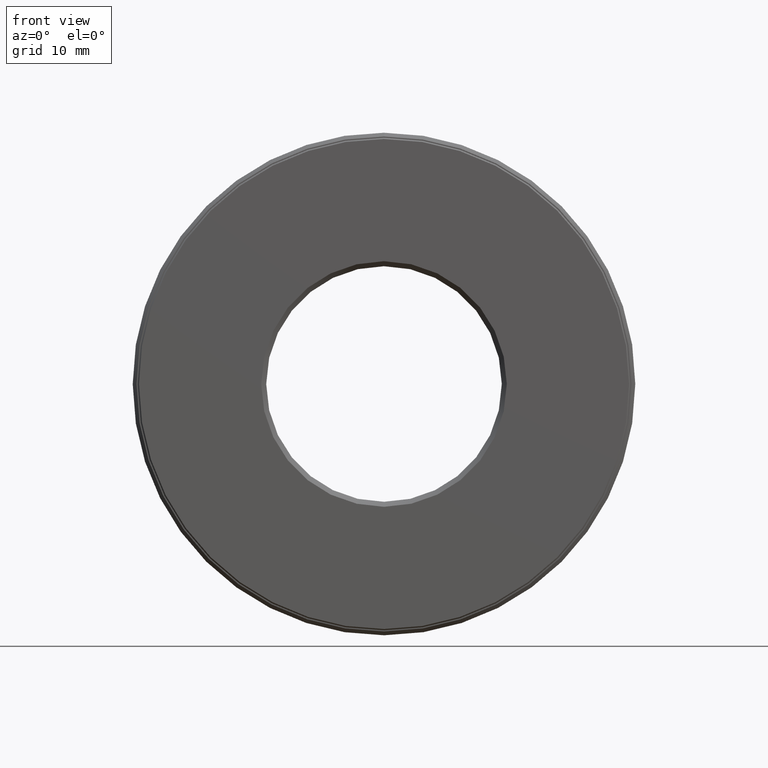
[diagram: clean part render]
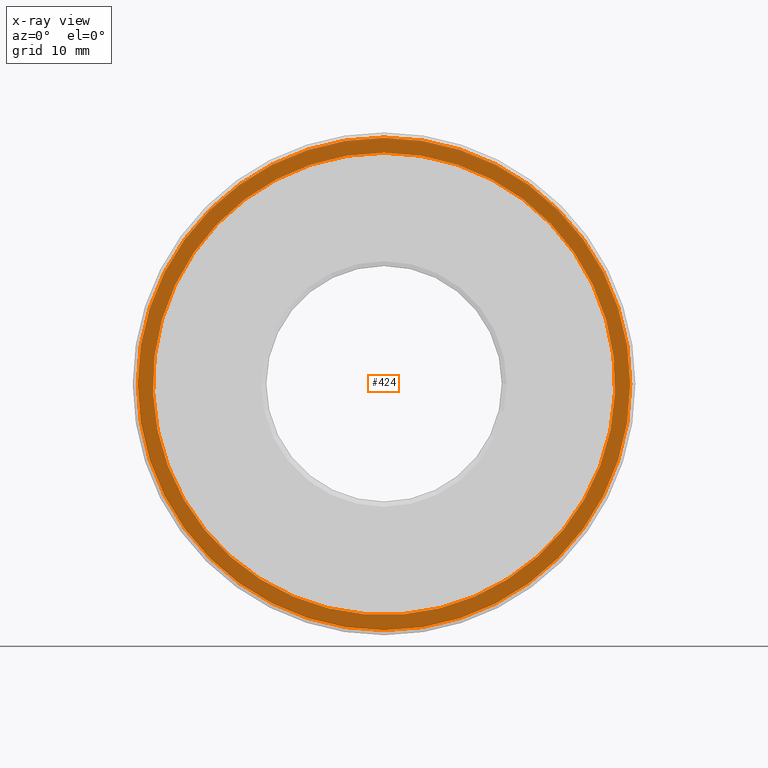
[diagram: x-ray — body ghosted, one internal face saturated and labeled with its STEP entity id]
A machine part, front view, then the same camera in x-ray: the body is ghosted and one INTERNAL B-rep face — a face not visible from any outside direction — is saturated and labeled: STEP entity #424.
In plain terms, the highlighted planar face has unit normal (-0, 1, 0).
Its self-contained STEP definition (entity closure, byte-faithful):
#47 = EDGE_CURVE ( 'NONE', #526, #526, #442, .T. ) ;
#144 = AXIS2_PLACEMENT_3D ( 'NONE', #222, #226, #368 ) ;
#154 = PLANE ( 'NONE',  #235 ) ;
#198 = DIRECTION ( 'NONE',  ( -0.0000000000000000000, 1.000000000000000000, 0.0000000000000000000 ) ) ;
#212 = CIRCLE ( 'NONE', #345, 0.9200000000000000400 ) ;
#222 = CARTESIAN_POINT ( 'NONE',  ( 0.0000000000000000000, 0.6524999999999997500, 0.0000000000000000000 ) ) ;
#226 = DIRECTION ( 'NONE',  ( -0.0000000000000000000, 1.000000000000000000, -0.0000000000000000000 ) ) ;
#235 = AXIS2_PLACEMENT_3D ( 'NONE', #419, #198, #520 ) ;
#249 = CARTESIAN_POINT ( 'NONE',  ( 0.0000000000000000000, 0.6524999999999997500, 0.9799999999999999800 ) ) ;
#288 = DIRECTION ( 'NONE',  ( -0.0000000000000000000, 1.000000000000000000, -0.0000000000000000000 ) ) ;
#293 = CARTESIAN_POINT ( 'NONE',  ( 0.0000000000000000000, 0.6524999999999997500, 0.9200000000000000400 ) ) ;
#295 = EDGE_LOOP ( 'NONE', ( #414 ) ) ;
#296 = FACE_BOUND ( 'NONE', #295, .T. ) ;
#331 = ORIENTED_EDGE ( 'NONE', *, *, #47, .F. ) ;
#345 = AXIS2_PLACEMENT_3D ( 'NONE', #523, #288, #572 ) ;
#368 = DIRECTION ( 'NONE',  ( 0.0000000000000000000, 0.0000000000000000000, 1.000000000000000000 ) ) ;
#414 = ORIENTED_EDGE ( 'NONE', *, *, #486, .T. ) ;
#419 = CARTESIAN_POINT ( 'NONE',  ( 0.0000000000000000000, 0.6524999999999997500, 0.0000000000000000000 ) ) ;
#424 = ADVANCED_FACE ( 'NONE', ( #532, #296 ), #154, .F. ) ;
#442 = CIRCLE ( 'NONE', #144, 0.9799999999999999800 ) ;
#475 = EDGE_LOOP ( 'NONE', ( #331 ) ) ;
#486 = EDGE_CURVE ( 'NONE', #519, #519, #212, .T. ) ;
#519 = VERTEX_POINT ( 'NONE', #293 ) ;
#520 = DIRECTION ( 'NONE',  ( 0.0000000000000000000, 0.0000000000000000000, 1.000000000000000000 ) ) ;
#523 = CARTESIAN_POINT ( 'NONE',  ( 0.0000000000000000000, 0.6524999999999997500, 0.0000000000000000000 ) ) ;
#526 = VERTEX_POINT ( 'NONE', #249 ) ;
#532 = FACE_OUTER_BOUND ( 'NONE', #475, .T. ) ;
#572 = DIRECTION ( 'NONE',  ( 0.0000000000000000000, 0.0000000000000000000, 1.000000000000000000 ) ) ;